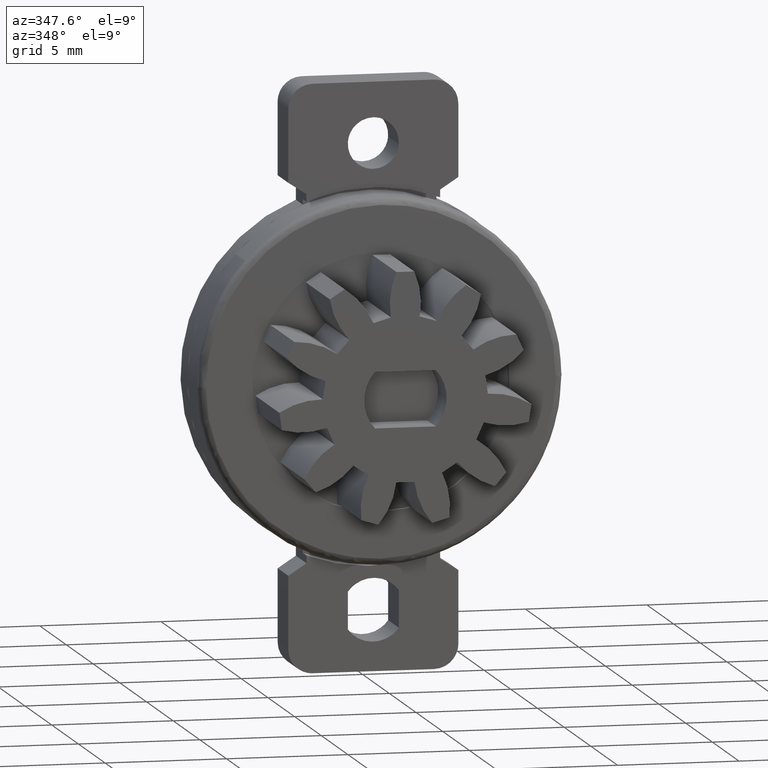
[diagram: clean part render]
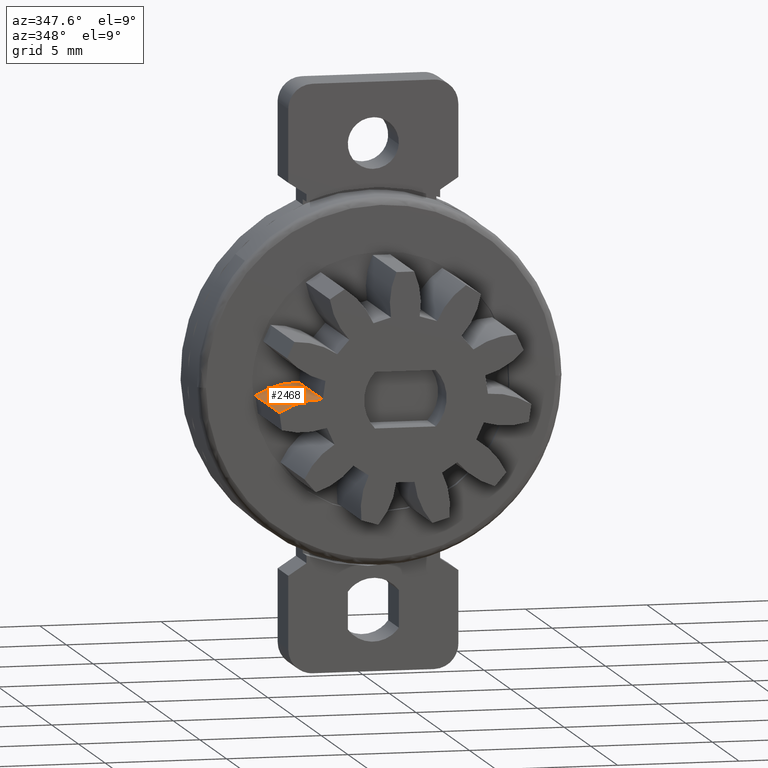
[diagram: same view with one face highlighted and labeled with its STEP entity id]
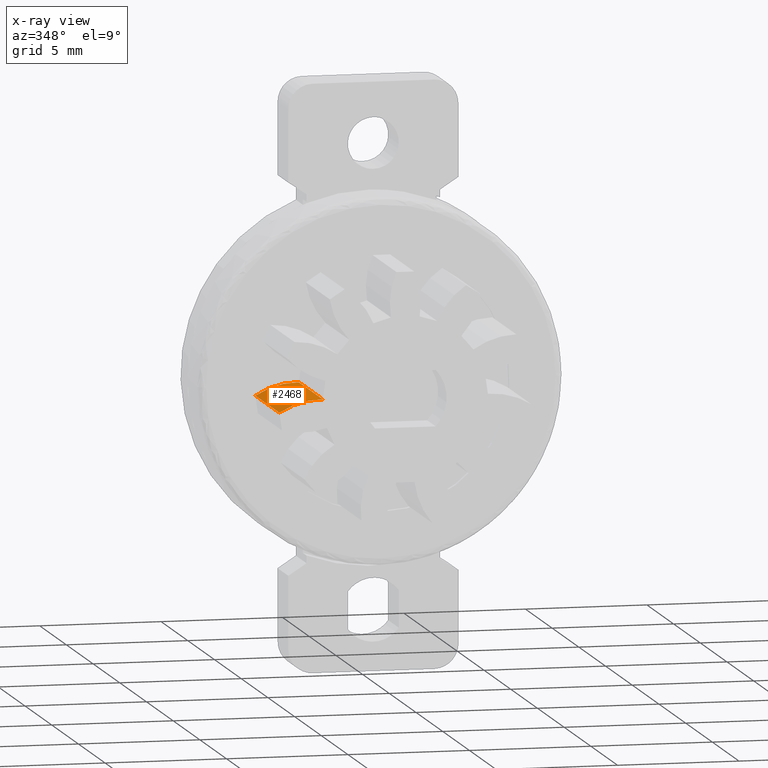
[diagram: x-ray of the same camera — body ghosted, the highlighted face saturated]
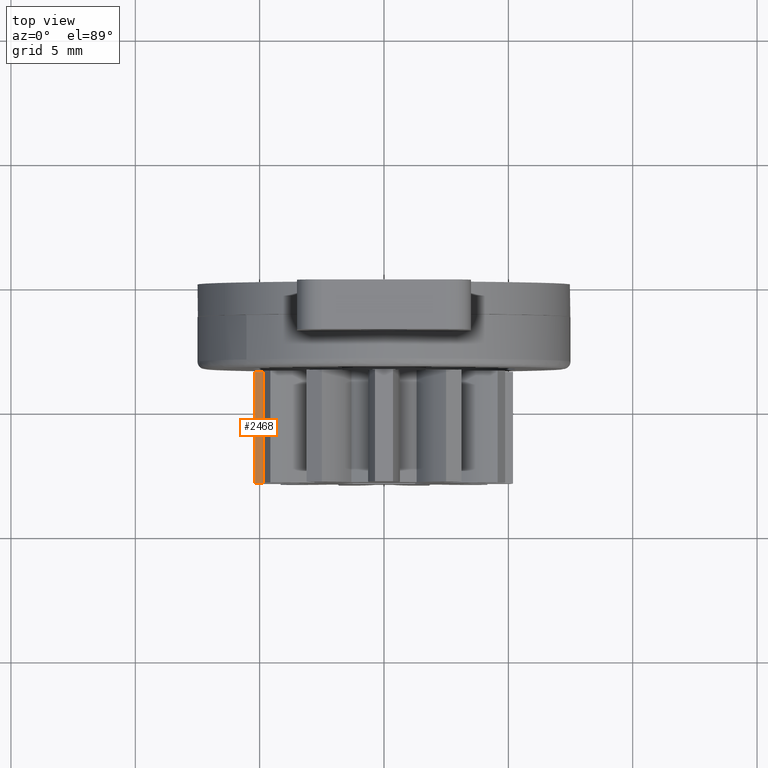
[diagram: same view with one face highlighted and labeled with its STEP entity id]
A machine part, auxiliary view. The second image highlights one B-rep face of the part: STEP entity #2468.
The next image is the same camera in x-ray: the body ghosted, the highlighted face saturated — about 0% of this face is hidden behind the body in this view.
A second angle (top view) of the same face is appended — the face is thin or edge-on in the first view.
In plain terms, the highlighted face is a freeform B-spline surface patch.
Its self-contained STEP definition (entity closure, byte-faithful):
#569=CARTESIAN_POINT('',(-3.398288243948785,-8.0,0.107874978746175));
#570=VERTEX_POINT('',#569);
#584=CARTESIAN_POINT('',(-5.186155873497579,-8.0,-0.379192900495937));
#585=VERTEX_POINT('',#584);
#586=CARTESIAN_POINT('',(-3.398288243948785,-8.0,0.107874978746173));
#587=CARTESIAN_POINT('',(-4.366944809302277,-8.0,0.138623932012841));
#588=CARTESIAN_POINT('',(-5.186155873497574,-8.0,-0.379192900495943));
#596=(BOUNDED_CURVE()B_SPLINE_CURVE(2,(#586,#587,#588),.UNSPECIFIED.,.F.,.U.)CURVE()GEOMETRIC_REPRESENTATION_ITEM()QUASI_UNIFORM_CURVE()RATIONAL_B_SPLINE_CURVE((1.0,0.956011273868736,1.0))REPRESENTATION_ITEM(''));
#597=EDGE_CURVE('',#570,#585,#596,.T.);
#1483=CARTESIAN_POINT('',(-5.186155873497579,-3.499999999999950,-0.379192900495937));
#1484=VERTEX_POINT('',#1483);
#1498=CARTESIAN_POINT('',(-3.398288243948785,-3.499999999999950,0.107874978746175));
#1499=VERTEX_POINT('',#1498);
#1500=CARTESIAN_POINT('',(-3.398288243948785,-3.499999999999950,0.107874978746173));
#1501=CARTESIAN_POINT('',(-4.366944809302277,-3.499999999999950,0.138623932012841));
#1502=CARTESIAN_POINT('',(-5.186155873497574,-3.499999999999950,-0.379192900495943));
#1510=(BOUNDED_CURVE()B_SPLINE_CURVE(2,(#1500,#1501,#1502),.UNSPECIFIED.,.F.,.U.)CURVE()GEOMETRIC_REPRESENTATION_ITEM()QUASI_UNIFORM_CURVE()RATIONAL_B_SPLINE_CURVE((1.0,0.956011273868736,1.0))REPRESENTATION_ITEM(''));
#1511=EDGE_CURVE('',#1499,#1484,#1510,.T.);
#2434=CARTESIAN_POINT('',(-5.186155873497579,-3.499999999999950,-0.379192900495937));
#2435=CARTESIAN_POINT('',(-5.186155873497579,-8.0,-0.379192900495937));
#2436=QUASI_UNIFORM_CURVE('',1,(#2434,#2435),.UNSPECIFIED.,.F.,.U.);
#2437=EDGE_CURVE('',#1484,#585,#2436,.T.);
#2444=CARTESIAN_POINT('',(-5.263263866960791,-3.387499999999950,-0.429520012071328));
#2445=CARTESIAN_POINT('',(-5.263263866960791,-8.115312500000002,-0.429520012071328));
#2446=CARTESIAN_POINT('',(-4.374910103125849,-3.387499999999949,0.168937636460611));
#2447=CARTESIAN_POINT('',(-4.374910103125849,-8.115312500000002,0.168937636460611));
#2448=CARTESIAN_POINT('',(-3.305773856754982,-3.387499999999949,0.103579748626759));
#2449=CARTESIAN_POINT('',(-3.305773856754982,-8.115312500000002,0.103579748626759));
#2457=(BOUNDED_SURFACE()B_SPLINE_SURFACE(1,2,((#2444,#2446,#2448),(#2445,#2447,#2449)),.UNSPECIFIED.,.F.,.F.,.U.)B_SPLINE_SURFACE_WITH_KNOTS((2,2),(3,3),(0.0,4.727812500000052),(0.0,2.083975211491680),.UNSPECIFIED.)GEOMETRIC_REPRESENTATION_ITEM()RATIONAL_B_SPLINE_SURFACE(((0.997786540914082,0.942072450817485,0.991757776564649),(0.997786540914082,0.942072450817485,0.991757776564649)))REPRESENTATION_ITEM('')SURFACE());
#2458=ORIENTED_EDGE('',*,*,#597,.F.);
#2459=CARTESIAN_POINT('',(-3.398288243948785,-3.499999999999950,0.107874978746175));
#2460=CARTESIAN_POINT('',(-3.398288243948785,-8.0,0.107874978746175));
#2461=QUASI_UNIFORM_CURVE('',1,(#2459,#2460),.UNSPECIFIED.,.F.,.U.);
#2462=EDGE_CURVE('',#1499,#570,#2461,.T.);
#2463=ORIENTED_EDGE('',*,*,#2462,.F.);
#2464=ORIENTED_EDGE('',*,*,#1511,.T.);
#2465=ORIENTED_EDGE('',*,*,#2437,.T.);
#2466=EDGE_LOOP('',(#2458,#2463,#2464,#2465));
#2467=FACE_OUTER_BOUND('',#2466,.T.);
#2468=ADVANCED_FACE('',(#2467),#2457,.T.);